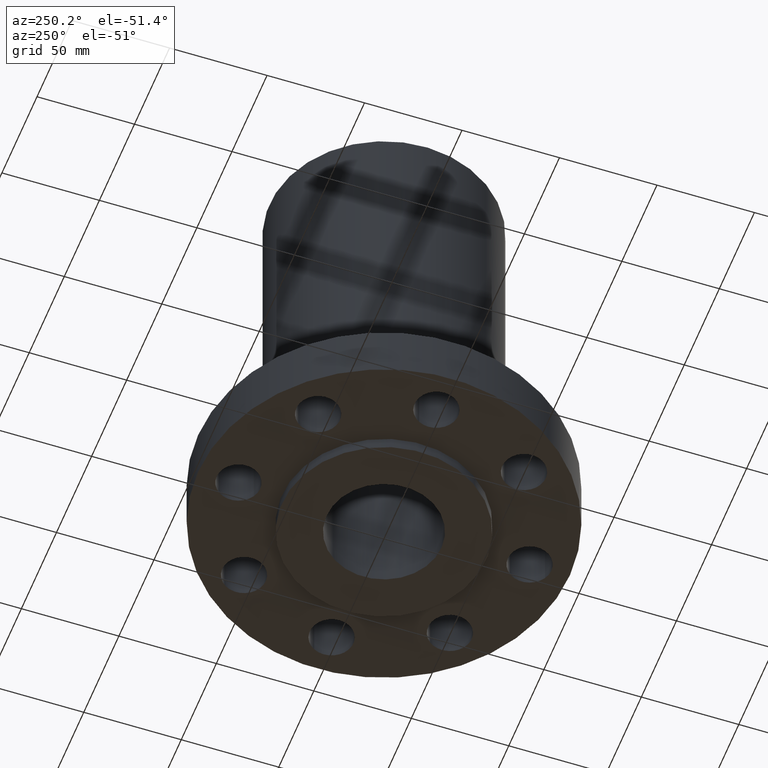
[diagram: clean part render]
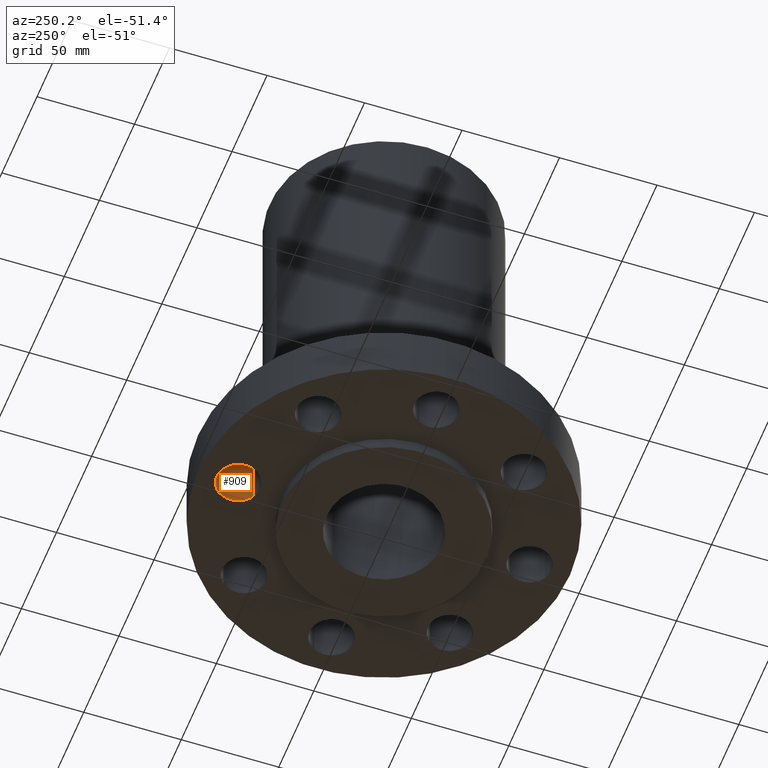
[diagram: same view with one face highlighted and labeled with its STEP entity id]
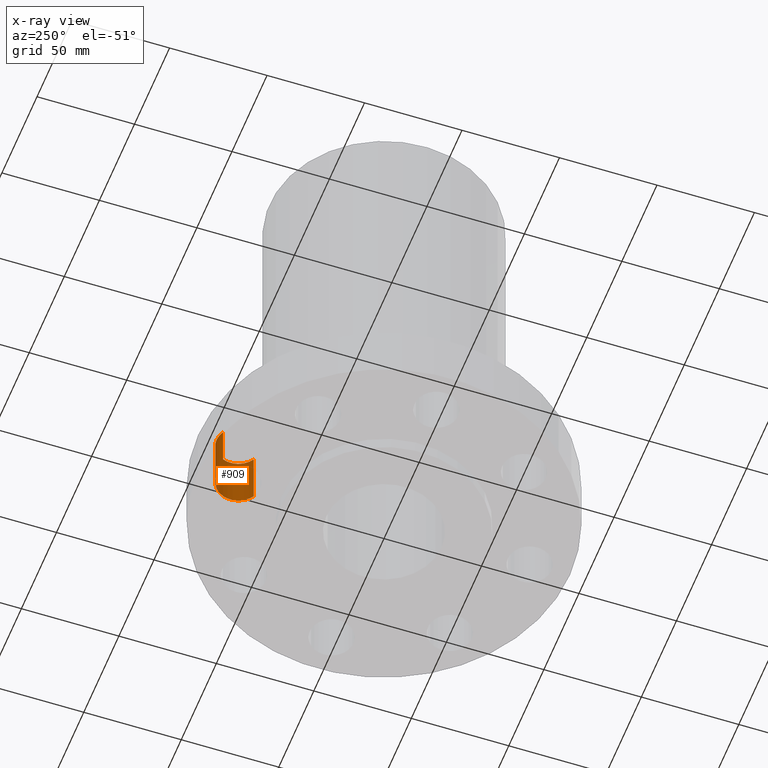
[diagram: x-ray of the same camera — body ghosted, the highlighted face saturated]
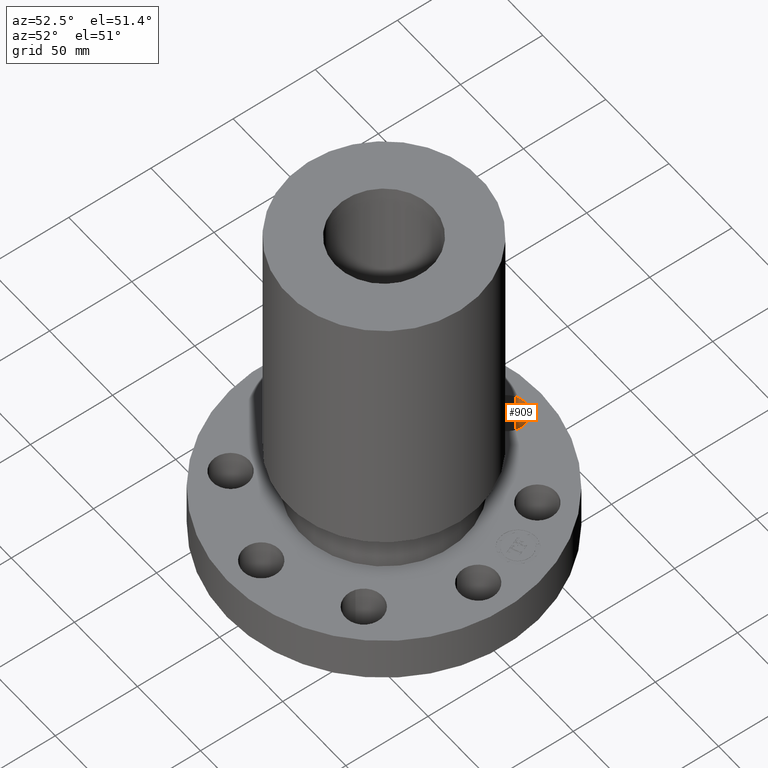
[diagram: same view with one face highlighted and labeled with its STEP entity id]
A machine part, auxiliary view. The second image highlights one B-rep face of the part: STEP entity #909.
The next image is the same camera in x-ray: the body ghosted, the highlighted face saturated — about 0% of this face is hidden behind the body in this view.
A second angle (auxiliary view) of the same face is appended — the face is thin or edge-on in the first view.
In plain terms, the highlighted cylindrical surface (edge-blend (fillet) strip) has radius 11.176 mm, axis along (0, 0, 1).
Its self-contained STEP definition (entity closure, byte-faithful):
#217=AXIS2_PLACEMENT_3D('Circle Axis2P3D',#215,#216,$) ;
#882=AXIS2_PLACEMENT_3D('Cylinder Axis2P3D',#879,#880,#881) ;
#893=AXIS2_PLACEMENT_3D('Circle Axis2P3D',#891,#892,$) ;
#215=CARTESIAN_POINT('Axis2P3D Location',(-5.94450123421E-016,2.94000000001,0.)) ;
#219=CARTESIAN_POINT('Vertex',(-0.210947236987,3.32613632725,0.)) ;
#221=CARTESIAN_POINT('Vertex',(0.210947236987,2.55386367278,0.)) ;
#879=CARTESIAN_POINT('Axis2P3D Location',(-5.40069238426E-016,2.94000000001,0.00393700787402)) ;
#884=CARTESIAN_POINT('Line Origine',(0.210947236987,2.55386367278,0.560000000002)) ;
#888=CARTESIAN_POINT('Vertex',(0.210947236987,2.55386367278,1.12)) ;
#891=CARTESIAN_POINT('Axis2P3D Location',(-5.40069238426E-016,2.94000000001,1.12)) ;
#895=CARTESIAN_POINT('Vertex',(-0.210947236987,3.32613632725,1.12)) ;
#898=CARTESIAN_POINT('Line Origine',(-0.210947236987,3.32613632725,0.560000000002)) ;
#216=DIRECTION('Axis2P3D Direction',(0.,0.,-0.0393700787402)) ;
#880=DIRECTION('Axis2P3D Direction',(0.,0.,0.0393700787402)) ;
#881=DIRECTION('Axis2P3D XDirection',(-0.0188750212049,0.0345504945626,0.)) ;
#885=DIRECTION('Vector Direction',(0.,0.,0.0393700787402)) ;
#892=DIRECTION('Axis2P3D Direction',(0.,0.,0.0393700787402)) ;
#899=DIRECTION('Vector Direction',(0.,0.,0.0393700787402)) ;
#886=VECTOR('Line Direction',#885,0.0393700787402) ;
#900=VECTOR('Line Direction',#899,0.0393700787402) ;
#904=ORIENTED_EDGE('',*,*,#890,.F.) ;
#905=ORIENTED_EDGE('',*,*,#897,.F.) ;
#906=ORIENTED_EDGE('',*,*,#902,.T.) ;
#907=ORIENTED_EDGE('',*,*,#223,.T.) ;
#909=ADVANCED_FACE('PartBody',(#908),#883,.F.) ;
#218=CIRCLE('generated circle',#217,0.440000000002) ;
#894=CIRCLE('generated circle',#893,0.440000000002) ;
#883=CYLINDRICAL_SURFACE('generated cylinder',#882,0.440000000002) ;
#223=EDGE_CURVE('',#220,#222,#218,.T.) ;
#890=EDGE_CURVE('',#889,#222,#887,.F.) ;
#897=EDGE_CURVE('',#896,#889,#894,.F.) ;
#902=EDGE_CURVE('',#896,#220,#901,.F.) ;
#903=EDGE_LOOP('',(#904,#905,#906,#907)) ;
#908=FACE_OUTER_BOUND('',#903,.T.) ;
#887=LINE('Line',#884,#886) ;
#901=LINE('Line',#898,#900) ;
#220=VERTEX_POINT('',#219) ;
#222=VERTEX_POINT('',#221) ;
#889=VERTEX_POINT('',#888) ;
#896=VERTEX_POINT('',#895) ;